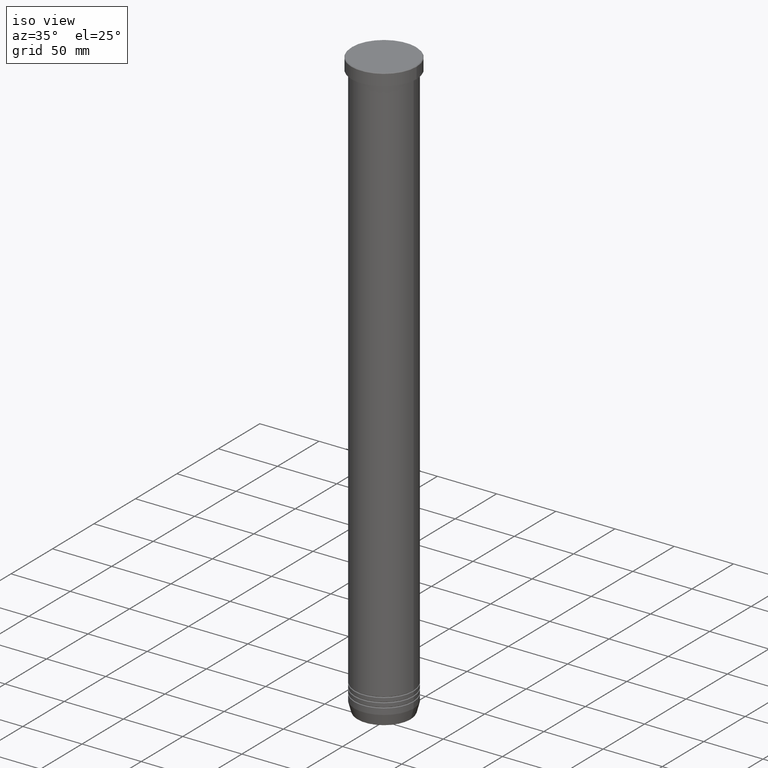
[diagram: clean part render]
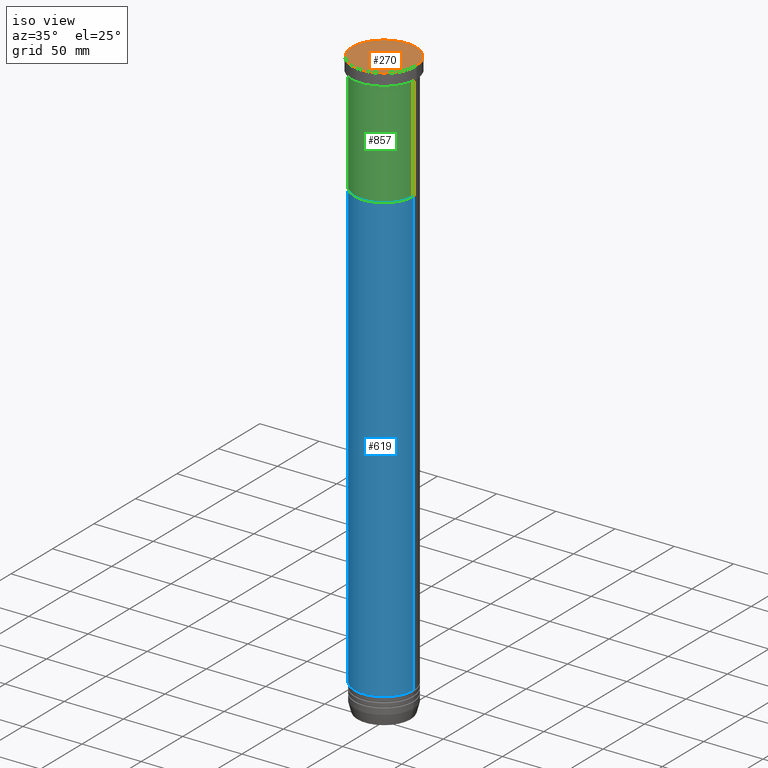
[diagram: same view with three faces highlighted in distinct colors, each labeled with its STEP entity id]
A machine part, iso view with three faces highlighted in distinct colors.
Their STEP definitions:

[orange] entity #270 — the highlighted planar face has unit normal (0, -0, 1).
#34 = CARTESIAN_POINT ( 'NONE',  ( 0.000000000000000000, 0.000000000000000000, 0.000000000000000000 ) ) ;
#39 = EDGE_LOOP ( 'NONE', ( #336, #906 ) ) ;
#113 = CIRCLE ( 'NONE', #922, 26.99999999999997868 ) ;
#124 = DIRECTION ( 'NONE',  ( 1.000000000000000000, 0.000000000000000000, 0.000000000000000000 ) ) ;
#215 = DIRECTION ( 'NONE',  ( 1.000000000000000000, 0.000000000000000000, 0.000000000000000000 ) ) ;
#251 = VERTEX_POINT ( 'NONE', #727 ) ;
#270 = ADVANCED_FACE ( 'NONE', ( #929 ), #603, .T. ) ;
#310 = CARTESIAN_POINT ( 'NONE',  ( 0.000000000000000000, 0.000000000000000000, 0.000000000000000000 ) ) ;
#336 = ORIENTED_EDGE ( 'NONE', *, *, #598, .T. ) ;
#387 = DIRECTION ( 'NONE',  ( -0.000000000000000000, -0.000000000000000000, 1.000000000000000000 ) ) ;
#538 = CARTESIAN_POINT ( 'NONE',  ( 0.000000000000000000, 0.000000000000000000, 0.000000000000000000 ) ) ;
#598 = EDGE_CURVE ( 'NONE', #677, #251, #782, .T. ) ;
#603 = PLANE ( 'NONE',  #919 ) ;
#626 = DIRECTION ( 'NONE',  ( 1.000000000000000000, 0.000000000000000000, 0.000000000000000000 ) ) ;
#677 = VERTEX_POINT ( 'NONE', #859 ) ;
#699 = DIRECTION ( 'NONE',  ( -0.000000000000000000, -0.000000000000000000, 1.000000000000000000 ) ) ;
#727 = CARTESIAN_POINT ( 'NONE',  ( 26.99999999999997868, 3.337162527676536337E-15, 0.000000000000000000 ) ) ;
#777 = DIRECTION ( 'NONE',  ( 0.000000000000000000, -0.000000000000000000, 1.000000000000000000 ) ) ;
#782 = CIRCLE ( 'NONE', #987, 26.99999999999997868 ) ;
#859 = CARTESIAN_POINT ( 'NONE',  ( -26.99999999999997868, 0.000000000000000000, 0.000000000000000000 ) ) ;
#906 = ORIENTED_EDGE ( 'NONE', *, *, #1043, .T. ) ;
#919 = AXIS2_PLACEMENT_3D ( 'NONE', #538, #777, #124 ) ;
#922 = AXIS2_PLACEMENT_3D ( 'NONE', #310, #699, #215 ) ;
#929 = FACE_OUTER_BOUND ( 'NONE', #39, .T. ) ;
#987 = AXIS2_PLACEMENT_3D ( 'NONE', #34, #387, #626 ) ;
#1043 = EDGE_CURVE ( 'NONE', #251, #677, #113, .T. ) ;

[blue] entity #619 — the highlighted cylindrical surface (edge-blend (fillet) strip) has radius 25 mm, axis along (-0, -0, 1).
#5 = EDGE_LOOP ( 'NONE', ( #730, #866, #428, #349 ) ) ;
#38 = CIRCLE ( 'NONE', #293, 25.00000000000000000 ) ;
#57 = CIRCLE ( 'NONE', #236, 24.99999999999999289 ) ;
#105 = CARTESIAN_POINT ( 'NONE',  ( -25.00000000000000355, 3.061616997868383437E-15, -100.0000000000000000 ) ) ;
#123 = VERTEX_POINT ( 'NONE', #378 ) ;
#229 = DIRECTION ( 'NONE',  ( -0.000000000000000000, -0.000000000000000000, 1.000000000000000000 ) ) ;
#236 = AXIS2_PLACEMENT_3D ( 'NONE', #750, #832, #421 ) ;
#271 = DIRECTION ( 'NONE',  ( -0.000000000000000000, -0.000000000000000000, 1.000000000000000000 ) ) ;
#293 = AXIS2_PLACEMENT_3D ( 'NONE', #315, #973, #955 ) ;
#313 = AXIS2_PLACEMENT_3D ( 'NONE', #401, #229, #724 ) ;
#315 = CARTESIAN_POINT ( 'NONE',  ( 0.000000000000000000, 0.000000000000000000, -100.0000000000000000 ) ) ;
#317 = CYLINDRICAL_SURFACE ( 'NONE', #313, 24.99999999999999645 ) ;
#349 = ORIENTED_EDGE ( 'NONE', *, *, #383, .F. ) ;
#368 = VERTEX_POINT ( 'NONE', #105 ) ;
#378 = CARTESIAN_POINT ( 'NONE',  ( 25.00000000000000000, 0.000000000000000000, -100.0000000000000000 ) ) ;
#383 = EDGE_CURVE ( 'NONE', #368, #123, #38, .T. ) ;
#401 = CARTESIAN_POINT ( 'NONE',  ( 0.000000000000000000, 0.000000000000000000, 0.000000000000000000 ) ) ;
#421 = DIRECTION ( 'NONE',  ( 1.000000000000000000, 0.000000000000000000, 0.000000000000000000 ) ) ;
#428 = ORIENTED_EDGE ( 'NONE', *, *, #509, .T. ) ;
#448 = VECTOR ( 'NONE', #875, 1000.000000000000000 ) ;
#509 = EDGE_CURVE ( 'NONE', #978, #123, #673, .T. ) ;
#563 = FACE_OUTER_BOUND ( 'NONE', #5, .T. ) ;
#619 = ADVANCED_FACE ( 'NONE', ( #563 ), #317, .T. ) ;
#673 = LINE ( 'NONE', #826, #950 ) ;
#694 = EDGE_CURVE ( 'NONE', #819, #368, #1034, .T. ) ;
#724 = DIRECTION ( 'NONE',  ( 1.000000000000000000, 0.000000000000000000, 0.000000000000000000 ) ) ;
#730 = ORIENTED_EDGE ( 'NONE', *, *, #694, .F. ) ;
#750 = CARTESIAN_POINT ( 'NONE',  ( 0.000000000000000000, 0.000000000000000000, -477.0000000000001137 ) ) ;
#755 = CARTESIAN_POINT ( 'NONE',  ( -24.99999999999999289, 3.061616997868382648E-15, -477.0000000000001137 ) ) ;
#786 = EDGE_CURVE ( 'NONE', #819, #978, #57, .T. ) ;
#819 = VERTEX_POINT ( 'NONE', #755 ) ;
#826 = CARTESIAN_POINT ( 'NONE',  ( 24.99999999999999645, 0.000000000000000000, 0.000000000000000000 ) ) ;
#832 = DIRECTION ( 'NONE',  ( -0.000000000000000000, -0.000000000000000000, 1.000000000000000000 ) ) ;
#866 = ORIENTED_EDGE ( 'NONE', *, *, #786, .T. ) ;
#875 = DIRECTION ( 'NONE',  ( -0.000000000000000000, -0.000000000000000000, 1.000000000000000000 ) ) ;
#950 = VECTOR ( 'NONE', #271, 1000.000000000000000 ) ;
#954 = CARTESIAN_POINT ( 'NONE',  ( -24.99999999999999645, 3.061616997868382648E-15, 0.000000000000000000 ) ) ;
#955 = DIRECTION ( 'NONE',  ( 1.000000000000000000, 0.000000000000000000, 0.000000000000000000 ) ) ;
#973 = DIRECTION ( 'NONE',  ( -0.000000000000000000, -0.000000000000000000, 1.000000000000000000 ) ) ;
#978 = VERTEX_POINT ( 'NONE', #1012 ) ;
#1012 = CARTESIAN_POINT ( 'NONE',  ( 24.99999999999999289, 0.000000000000000000, -477.0000000000001137 ) ) ;
#1034 = LINE ( 'NONE', #954, #448 ) ;

[green] entity #857 — the highlighted cylindrical surface (edge-blend (fillet) strip) has radius 25 mm, axis along (-0, -0, 1).
#48 = VERTEX_POINT ( 'NONE', #1002 ) ;
#59 = CIRCLE ( 'NONE', #199, 25.00000000000000000 ) ;
#90 = LINE ( 'NONE', #177, #1035 ) ;
#147 = VERTEX_POINT ( 'NONE', #945 ) ;
#175 = CARTESIAN_POINT ( 'NONE',  ( -25.00000000000000000, 3.061616997868383043E-15, 0.000000000000000000 ) ) ;
#177 = CARTESIAN_POINT ( 'NONE',  ( 25.00000000000000000, 0.000000000000000000, 0.000000000000000000 ) ) ;
#181 = AXIS2_PLACEMENT_3D ( 'NONE', #606, #999, #523 ) ;
#196 = AXIS2_PLACEMENT_3D ( 'NONE', #551, #212, #645 ) ;
#199 = AXIS2_PLACEMENT_3D ( 'NONE', #774, #1016, #277 ) ;
#212 = DIRECTION ( 'NONE',  ( -0.000000000000000000, -0.000000000000000000, 1.000000000000000000 ) ) ;
#277 = DIRECTION ( 'NONE',  ( 1.000000000000000000, 0.000000000000000000, 0.000000000000000000 ) ) ;
#390 = ORIENTED_EDGE ( 'NONE', *, *, #604, .T. ) ;
#422 = VERTEX_POINT ( 'NONE', #641 ) ;
#515 = ORIENTED_EDGE ( 'NONE', *, *, #820, .F. ) ;
#523 = DIRECTION ( 'NONE',  ( 1.000000000000000000, 0.000000000000000000, 0.000000000000000000 ) ) ;
#525 = EDGE_CURVE ( 'NONE', #147, #422, #90, .T. ) ;
#545 = CIRCLE ( 'NONE', #196, 25.00000000000000000 ) ;
#550 = VERTEX_POINT ( 'NONE', #659 ) ;
#551 = CARTESIAN_POINT ( 'NONE',  ( 0.000000000000000000, 0.000000000000000000, -100.0000000000000000 ) ) ;
#587 = ORIENTED_EDGE ( 'NONE', *, *, #943, .F. ) ;
#594 = EDGE_LOOP ( 'NONE', ( #515, #390, #1044, #587 ) ) ;
#604 = EDGE_CURVE ( 'NONE', #48, #147, #545, .T. ) ;
#606 = CARTESIAN_POINT ( 'NONE',  ( 0.000000000000000000, 0.000000000000000000, 0.000000000000000000 ) ) ;
#641 = CARTESIAN_POINT ( 'NONE',  ( 25.00000000000000000, 0.000000000000000000, -11.00000000000000000 ) ) ;
#645 = DIRECTION ( 'NONE',  ( 1.000000000000000000, 0.000000000000000000, 0.000000000000000000 ) ) ;
#659 = CARTESIAN_POINT ( 'NONE',  ( -25.00000000000000000, 3.061616997868383043E-15, -11.00000000000000000 ) ) ;
#774 = CARTESIAN_POINT ( 'NONE',  ( 0.000000000000000000, 0.000000000000000000, -11.00000000000000000 ) ) ;
#811 = DIRECTION ( 'NONE',  ( -0.000000000000000000, -0.000000000000000000, 1.000000000000000000 ) ) ;
#820 = EDGE_CURVE ( 'NONE', #48, #550, #1060, .T. ) ;
#854 = CYLINDRICAL_SURFACE ( 'NONE', #181, 25.00000000000000000 ) ;
#857 = ADVANCED_FACE ( 'NONE', ( #994 ), #854, .T. ) ;
#943 = EDGE_CURVE ( 'NONE', #550, #422, #59, .T. ) ;
#945 = CARTESIAN_POINT ( 'NONE',  ( 25.00000000000000000, 0.000000000000000000, -100.0000000000000000 ) ) ;
#951 = VECTOR ( 'NONE', #975, 1000.000000000000000 ) ;
#975 = DIRECTION ( 'NONE',  ( -0.000000000000000000, -0.000000000000000000, 1.000000000000000000 ) ) ;
#994 = FACE_OUTER_BOUND ( 'NONE', #594, .T. ) ;
#999 = DIRECTION ( 'NONE',  ( -0.000000000000000000, -0.000000000000000000, 1.000000000000000000 ) ) ;
#1002 = CARTESIAN_POINT ( 'NONE',  ( -25.00000000000000000, 3.061616997868383043E-15, -100.0000000000000000 ) ) ;
#1016 = DIRECTION ( 'NONE',  ( -0.000000000000000000, -0.000000000000000000, 1.000000000000000000 ) ) ;
#1035 = VECTOR ( 'NONE', #811, 1000.000000000000000 ) ;
#1044 = ORIENTED_EDGE ( 'NONE', *, *, #525, .T. ) ;
#1060 = LINE ( 'NONE', #175, #951 ) ;